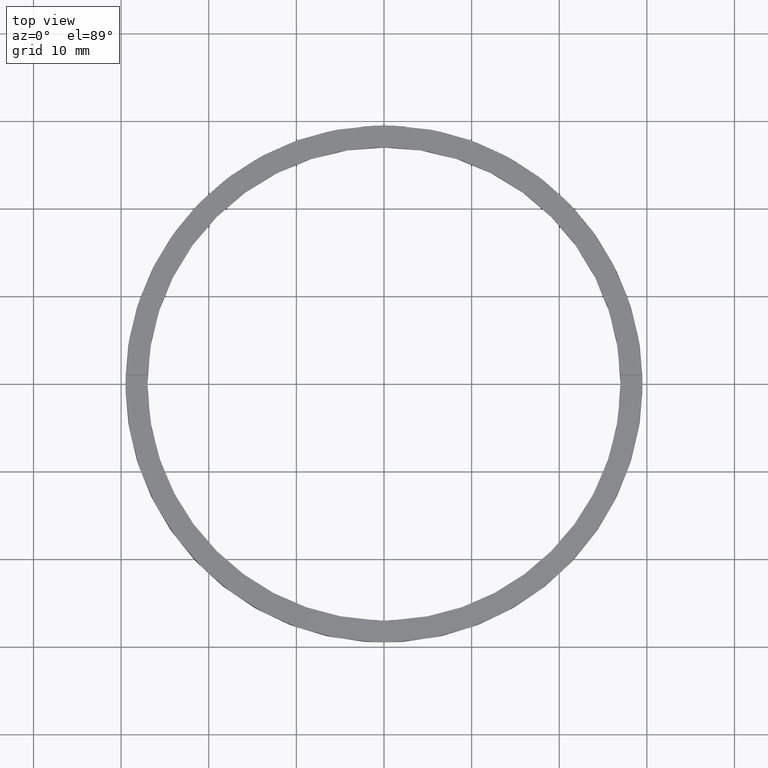
[diagram: clean part render]
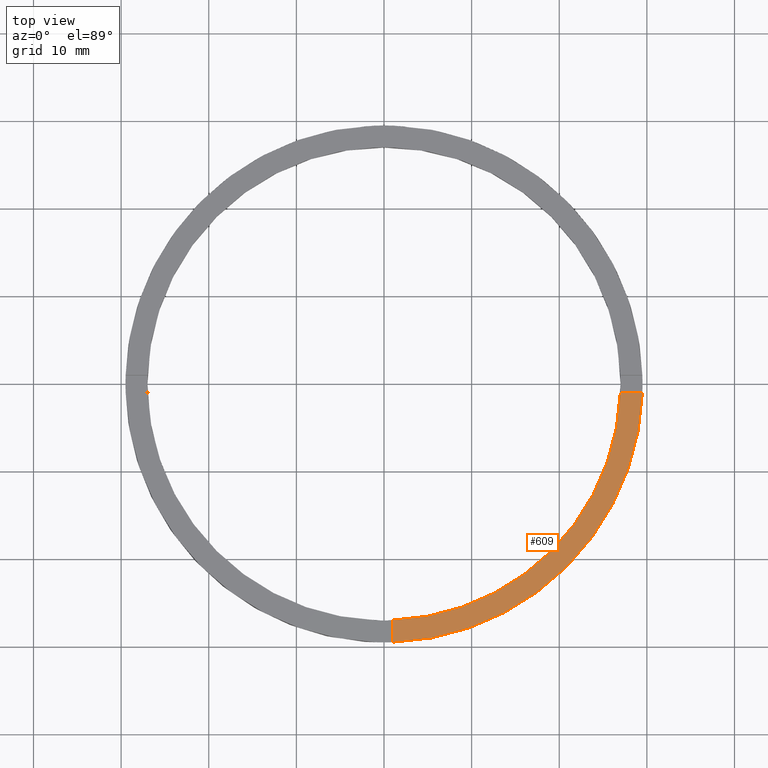
[diagram: same view with one face highlighted and labeled with its STEP entity id]
A machine part, top view. The second image highlights one B-rep face of the part: STEP entity #609.
In plain terms, the highlighted planar face has unit normal (0, 0, 1).
Its self-contained STEP definition (entity closure, byte-faithful):
#18 = EDGE_CURVE ( 'NONE', #236, #504, #195, .T. ) ;
#31 = VECTOR ( 'NONE', #160, 1000.000000000000000 ) ;
#72 = EDGE_CURVE ( 'NONE', #504, #179, #550, .T. ) ;
#114 = CIRCLE ( 'NONE', #119, 29.50000000000000355 ) ;
#119 = AXIS2_PLACEMENT_3D ( 'NONE', #423, #736, #622 ) ;
#124 = CARTESIAN_POINT ( 'NONE',  ( 29.48304597561113383, -1.000000000000158984, 2.500000000000000000 ) ) ;
#160 = DIRECTION ( 'NONE',  ( 1.000000000000000000, 6.505213034913027837E-17, 0.000000000000000000 ) ) ;
#168 = EDGE_LOOP ( 'NONE', ( #505, #493, #477, #722 ) ) ;
#171 = CARTESIAN_POINT ( 'NONE',  ( 19.50000000000000000, -1.000000000000159650, 2.500000000000000000 ) ) ;
#179 = VERTEX_POINT ( 'NONE', #124 ) ;
#195 = CIRCLE ( 'NONE', #212, 27.00000000000000000 ) ;
#200 = PLANE ( 'NONE',  #350 ) ;
#212 = AXIS2_PLACEMENT_3D ( 'NONE', #335, #375, #663 ) ;
#214 = DIRECTION ( 'NONE',  ( 0.000000000000000000, 0.000000000000000000, 1.000000000000000000 ) ) ;
#236 = VERTEX_POINT ( 'NONE', #660 ) ;
#273 = FACE_OUTER_BOUND ( 'NONE', #168, .T. ) ;
#276 = LINE ( 'NONE', #342, #517 ) ;
#288 = CARTESIAN_POINT ( 'NONE',  ( 0.000000000000000000, 0.000000000000000000, 2.500000000000000000 ) ) ;
#313 = EDGE_CURVE ( 'NONE', #764, #179, #114, .T. ) ;
#335 = CARTESIAN_POINT ( 'NONE',  ( 0.000000000000000000, 0.000000000000000000, 2.500000000000000000 ) ) ;
#342 = CARTESIAN_POINT ( 'NONE',  ( 0.9999999999998369082, -19.50000000000018474, 2.500000000000000000 ) ) ;
#350 = AXIS2_PLACEMENT_3D ( 'NONE', #288, #214, #682 ) ;
#375 = DIRECTION ( 'NONE',  ( 0.000000000000000000, 0.000000000000000000, 1.000000000000000000 ) ) ;
#388 = DIRECTION ( 'NONE',  ( -1.301042606982605567E-16, 1.000000000000000000, -0.000000000000000000 ) ) ;
#423 = CARTESIAN_POINT ( 'NONE',  ( 0.000000000000000000, 0.000000000000000000, 2.500000000000000000 ) ) ;
#460 = CARTESIAN_POINT ( 'NONE',  ( 0.9999999999998382405, -29.48304597561114448, 2.500000000000000000 ) ) ;
#477 = ORIENTED_EDGE ( 'NONE', *, *, #638, .F. ) ;
#493 = ORIENTED_EDGE ( 'NONE', *, *, #18, .F. ) ;
#504 = VERTEX_POINT ( 'NONE', #714 ) ;
#505 = ORIENTED_EDGE ( 'NONE', *, *, #72, .F. ) ;
#517 = VECTOR ( 'NONE', #388, 1000.000000000000000 ) ;
#550 = LINE ( 'NONE', #171, #31 ) ;
#609 = ADVANCED_FACE ( 'NONE', ( #273 ), #200, .T. ) ;
#622 = DIRECTION ( 'NONE',  ( 1.000000000000000000, 0.000000000000000000, 0.000000000000000000 ) ) ;
#638 = EDGE_CURVE ( 'NONE', #764, #236, #276, .T. ) ;
#660 = CARTESIAN_POINT ( 'NONE',  ( 0.9999999999998377964, -26.98147512646408686, 2.500000000000000000 ) ) ;
#663 = DIRECTION ( 'NONE',  ( 1.000000000000000000, 0.000000000000000000, 0.000000000000000000 ) ) ;
#682 = DIRECTION ( 'NONE',  ( 1.000000000000000000, 0.000000000000000000, -0.000000000000000000 ) ) ;
#714 = CARTESIAN_POINT ( 'NONE',  ( 26.98147512646407620, -1.000000000000159206, 2.500000000000000000 ) ) ;
#722 = ORIENTED_EDGE ( 'NONE', *, *, #313, .T. ) ;
#736 = DIRECTION ( 'NONE',  ( 0.000000000000000000, 0.000000000000000000, 1.000000000000000000 ) ) ;
#764 = VERTEX_POINT ( 'NONE', #460 ) ;